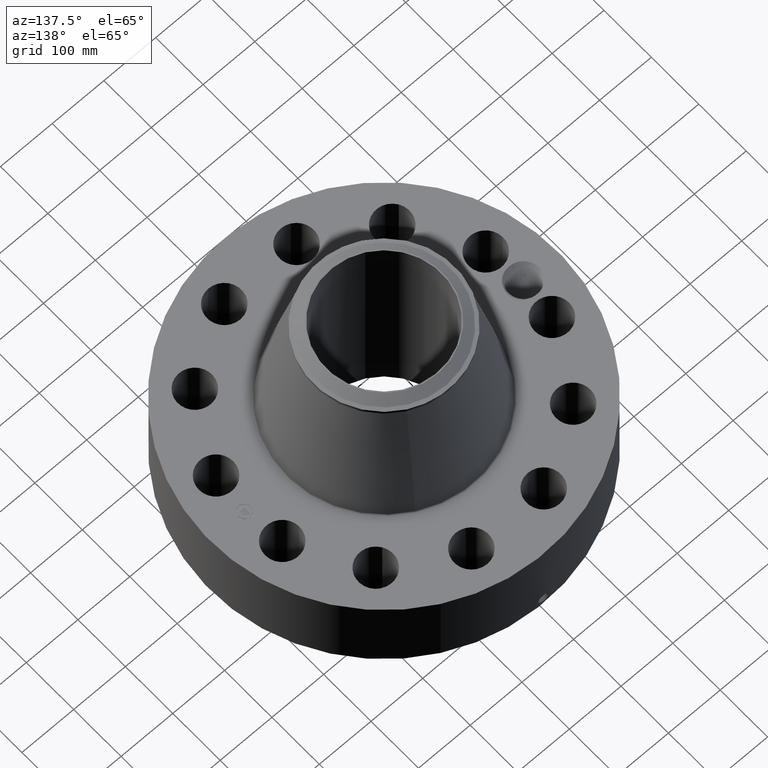
[diagram: clean part render]
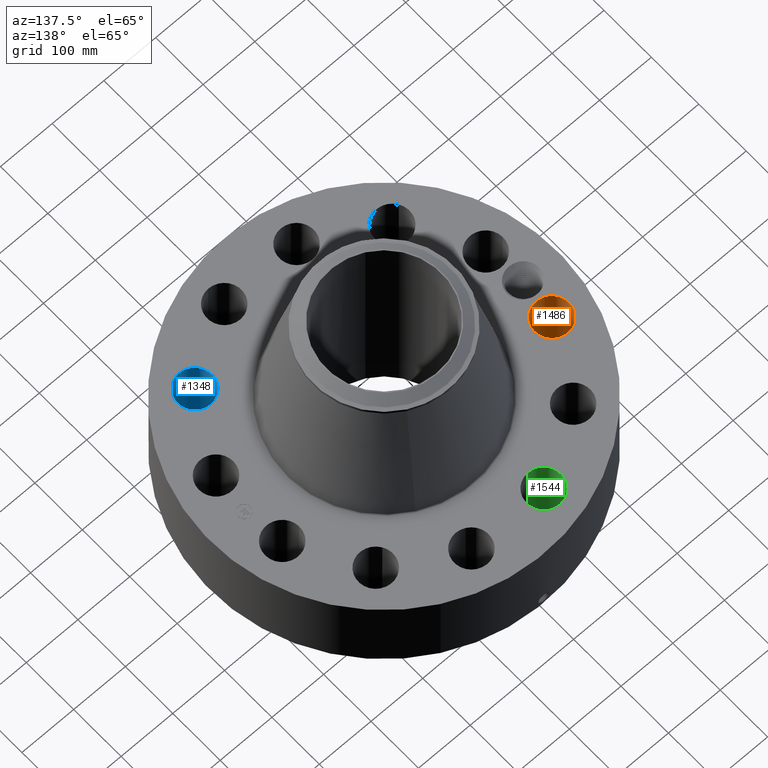
[diagram: same view with three faces highlighted in distinct colors, each labeled with its STEP entity id]
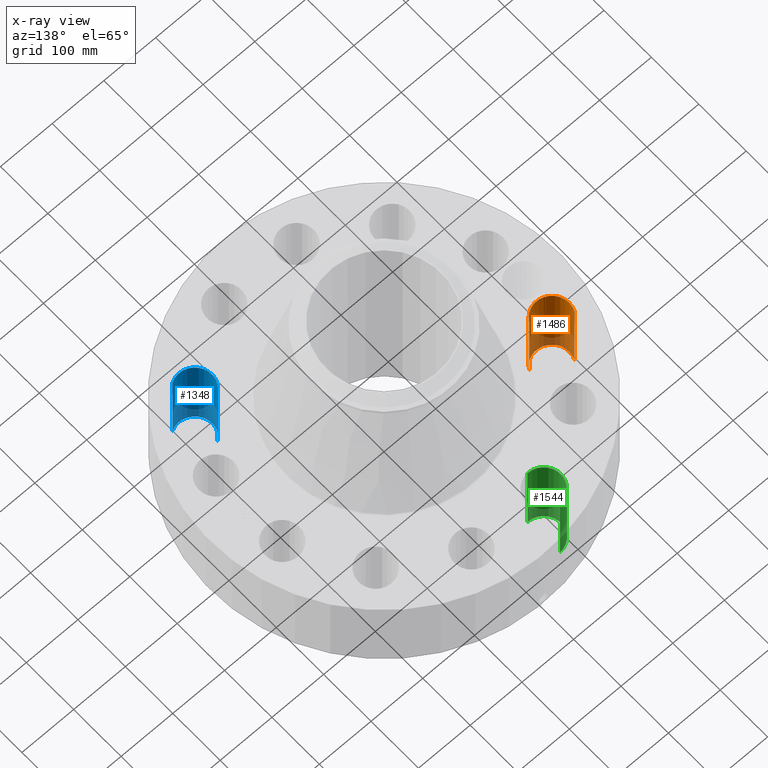
[diagram: x-ray of the same camera — body ghosted, the three highlighted faces saturated]
A machine part, auxiliary view with three faces highlighted in distinct colors.
The next image is the same camera in x-ray (body ghosted, the three faces saturated) — at least one of them is partly hidden behind the body in this view.
Their STEP definitions:

[orange] entity #1486 — the highlighted cylindrical surface (edge-blend (fillet) strip) has radius 33.274 mm, axis along (-0, 0, -1).
#365=AXIS2_PLACEMENT_3D('Circle Axis2P3D',#363,#364,$) ;
#778=AXIS2_PLACEMENT_3D('Circle Axis2P3D',#776,#777,$) ;
#1468=AXIS2_PLACEMENT_3D('Cylinder Axis2P3D',#1465,#1466,#1467) ;
#363=CARTESIAN_POINT('Axis2P3D Location',(-10.2629619044,2.74995235423,0.250000000001)) ;
#367=CARTESIAN_POINT('Vertex',(-9.11332874828,2.12190489865,0.250000000001)) ;
#369=CARTESIAN_POINT('Vertex',(-11.4125950604,3.3779998098,0.250000000001)) ;
#771=CARTESIAN_POINT('Vertex',(-11.4125950604,3.3779998098,6.75000000003)) ;
#773=CARTESIAN_POINT('Vertex',(-9.11332874828,2.12190489865,6.75000000003)) ;
#776=CARTESIAN_POINT('Axis2P3D Location',(-10.2629619044,2.74995235423,6.75000000003)) ;
#1465=CARTESIAN_POINT('Axis2P3D Location',(-10.2629619044,2.74995235423,6.74606299215)) ;
#1470=CARTESIAN_POINT('Line Origine',(-9.11332874828,2.12190489865,3.50000000001)) ;
#1475=CARTESIAN_POINT('Line Origine',(-11.4125950604,3.3779998098,3.50000000001)) ;
#364=DIRECTION('Axis2P3D Direction',(0.,0.,-0.0393700787402)) ;
#777=DIRECTION('Axis2P3D Direction',(0.,0.,-0.0393700787402)) ;
#1466=DIRECTION('Axis2P3D Direction',(-0.,0.,-0.0393700787402)) ;
#1467=DIRECTION('Axis2P3D XDirection',(-0.0345504945626,0.0188750212049,0.)) ;
#1471=DIRECTION('Vector Direction',(0.,0.,-0.0393700787402)) ;
#1476=DIRECTION('Vector Direction',(0.,0.,-0.0393700787402)) ;
#1472=VECTOR('Line Direction',#1471,0.0393700787402) ;
#1477=VECTOR('Line Direction',#1476,0.0393700787402) ;
#1481=ORIENTED_EDGE('',*,*,#1474,.F.) ;
#1482=ORIENTED_EDGE('',*,*,#371,.T.) ;
#1483=ORIENTED_EDGE('',*,*,#1479,.T.) ;
#1484=ORIENTED_EDGE('',*,*,#780,.F.) ;
#1486=ADVANCED_FACE('PartBody',(#1485),#1469,.F.) ;
#366=CIRCLE('generated circle',#365,1.31000000001) ;
#779=CIRCLE('generated circle',#778,1.31000000001) ;
#1469=CYLINDRICAL_SURFACE('generated cylinder',#1468,1.31000000001) ;
#371=EDGE_CURVE('',#368,#370,#366,.T.) ;
#780=EDGE_CURVE('',#774,#772,#779,.T.) ;
#1474=EDGE_CURVE('',#368,#774,#1473,.F.) ;
#1479=EDGE_CURVE('',#370,#772,#1478,.F.) ;
#1480=EDGE_LOOP('',(#1481,#1482,#1483,#1484)) ;
#1485=FACE_OUTER_BOUND('',#1480,.T.) ;
#1473=LINE('Line',#1470,#1472) ;
#1478=LINE('Line',#1475,#1477) ;
#368=VERTEX_POINT('',#367) ;
#370=VERTEX_POINT('',#369) ;
#772=VERTEX_POINT('',#771) ;
#774=VERTEX_POINT('',#773) ;

[blue] entity #1348 — the highlighted cylindrical surface (edge-blend (fillet) strip) has radius 33.274 mm, axis along (0, -0, -1).
#284=AXIS2_PLACEMENT_3D('Circle Axis2P3D',#282,#283,$) ;
#679=AXIS2_PLACEMENT_3D('Circle Axis2P3D',#677,#678,$) ;
#1323=AXIS2_PLACEMENT_3D('Cylinder Axis2P3D',#1320,#1321,#1322) ;
#277=CARTESIAN_POINT('Vertex',(6.83142175973,-6.39428792079,0.250000000001)) ;
#279=CARTESIAN_POINT('Vertex',(8.19459734055,-8.63173117949,0.250000000001)) ;
#282=CARTESIAN_POINT('Axis2P3D Location',(7.51300955014,-7.51300955014,0.250000000001)) ;
#677=CARTESIAN_POINT('Axis2P3D Location',(7.51300955014,-7.51300955014,6.75000000003)) ;
#681=CARTESIAN_POINT('Vertex',(8.19459734055,-8.63173117949,6.75000000003)) ;
#683=CARTESIAN_POINT('Vertex',(6.83142175973,-6.39428792079,6.75000000003)) ;
#1320=CARTESIAN_POINT('Axis2P3D Location',(7.51300955014,-7.51300955014,6.74606299215)) ;
#1325=CARTESIAN_POINT('Line Origine',(6.83142175973,-6.39428792079,3.50000000001)) ;
#1330=CARTESIAN_POINT('Line Origine',(8.19459734055,-8.63173117949,3.50000000001)) ;
#283=DIRECTION('Axis2P3D Direction',(0.,0.,-0.0393700787402)) ;
#678=DIRECTION('Axis2P3D Direction',(0.,0.,-0.0393700787402)) ;
#1321=DIRECTION('Axis2P3D Direction',(0.,-0.,-0.0393700787402)) ;
#1322=DIRECTION('Axis2P3D XDirection',(0.0204840954021,-0.0336214951417,0.)) ;
#1326=DIRECTION('Vector Direction',(0.,0.,-0.0393700787402)) ;
#1331=DIRECTION('Vector Direction',(0.,0.,-0.0393700787402)) ;
#1327=VECTOR('Line Direction',#1326,0.0393700787402) ;
#1332=VECTOR('Line Direction',#1331,0.0393700787402) ;
#1343=ORIENTED_EDGE('',*,*,#1334,.F.) ;
#1344=ORIENTED_EDGE('',*,*,#286,.T.) ;
#1345=ORIENTED_EDGE('',*,*,#1329,.T.) ;
#1346=ORIENTED_EDGE('',*,*,#685,.F.) ;
#1348=ADVANCED_FACE('PartBody',(#1347),#1324,.F.) ;
#285=CIRCLE('generated circle',#284,1.31000000001) ;
#680=CIRCLE('generated circle',#679,1.31000000001) ;
#1324=CYLINDRICAL_SURFACE('generated cylinder',#1323,1.31000000001) ;
#286=EDGE_CURVE('',#280,#278,#285,.T.) ;
#685=EDGE_CURVE('',#682,#684,#680,.T.) ;
#1329=EDGE_CURVE('',#278,#684,#1328,.F.) ;
#1334=EDGE_CURVE('',#280,#682,#1333,.F.) ;
#1342=EDGE_LOOP('',(#1343,#1344,#1345,#1346)) ;
#1347=FACE_OUTER_BOUND('',#1342,.T.) ;
#1328=LINE('Line',#1325,#1327) ;
#1333=LINE('Line',#1330,#1332) ;
#278=VERTEX_POINT('',#277) ;
#280=VERTEX_POINT('',#279) ;
#682=VERTEX_POINT('',#681) ;
#684=VERTEX_POINT('',#683) ;

[green] entity #1544 — the highlighted cylindrical surface (edge-blend (fillet) strip) has radius 33.274 mm, axis along (0, 0, -1).
#401=AXIS2_PLACEMENT_3D('Circle Axis2P3D',#399,#400,$) ;
#814=AXIS2_PLACEMENT_3D('Circle Axis2P3D',#812,#813,$) ;
#1526=AXIS2_PLACEMENT_3D('Cylinder Axis2P3D',#1523,#1524,#1525) ;
#399=CARTESIAN_POINT('Axis2P3D Location',(-2.74995235423,10.2629619044,0.250000000001)) ;
#403=CARTESIAN_POINT('Vertex',(-2.71904082749,8.95332665838,0.250000000001)) ;
#405=CARTESIAN_POINT('Vertex',(-2.78086388096,11.5725971503,0.250000000001)) ;
#807=CARTESIAN_POINT('Vertex',(-2.78086388096,11.5725971503,6.75000000003)) ;
#809=CARTESIAN_POINT('Vertex',(-2.71904082749,8.95332665838,6.75000000003)) ;
#812=CARTESIAN_POINT('Axis2P3D Location',(-2.74995235423,10.2629619044,6.75000000003)) ;
#1523=CARTESIAN_POINT('Axis2P3D Location',(-2.74995235423,10.2629619044,6.74606299215)) ;
#1528=CARTESIAN_POINT('Line Origine',(-2.71904082749,8.95332665838,3.50000000001)) ;
#1533=CARTESIAN_POINT('Line Origine',(-2.78086388096,11.5725971503,3.50000000001)) ;
#400=DIRECTION('Axis2P3D Direction',(0.,0.,-0.0393700787402)) ;
#813=DIRECTION('Axis2P3D Direction',(0.,0.,-0.0393700787402)) ;
#1524=DIRECTION('Axis2P3D Direction',(0.,0.,-0.0393700787402)) ;
#1525=DIRECTION('Axis2P3D XDirection',(-0.000928999420902,0.039359116607,0.)) ;
#1529=DIRECTION('Vector Direction',(0.,0.,-0.0393700787402)) ;
#1534=DIRECTION('Vector Direction',(0.,0.,-0.0393700787402)) ;
#1530=VECTOR('Line Direction',#1529,0.0393700787402) ;
#1535=VECTOR('Line Direction',#1534,0.0393700787402) ;
#1539=ORIENTED_EDGE('',*,*,#1532,.F.) ;
#1540=ORIENTED_EDGE('',*,*,#407,.T.) ;
#1541=ORIENTED_EDGE('',*,*,#1537,.T.) ;
#1542=ORIENTED_EDGE('',*,*,#816,.F.) ;
#1544=ADVANCED_FACE('PartBody',(#1543),#1527,.F.) ;
#402=CIRCLE('generated circle',#401,1.31000000001) ;
#815=CIRCLE('generated circle',#814,1.31000000001) ;
#1527=CYLINDRICAL_SURFACE('generated cylinder',#1526,1.31000000001) ;
#407=EDGE_CURVE('',#404,#406,#402,.T.) ;
#816=EDGE_CURVE('',#810,#808,#815,.T.) ;
#1532=EDGE_CURVE('',#404,#810,#1531,.F.) ;
#1537=EDGE_CURVE('',#406,#808,#1536,.F.) ;
#1538=EDGE_LOOP('',(#1539,#1540,#1541,#1542)) ;
#1543=FACE_OUTER_BOUND('',#1538,.T.) ;
#1531=LINE('Line',#1528,#1530) ;
#1536=LINE('Line',#1533,#1535) ;
#404=VERTEX_POINT('',#403) ;
#406=VERTEX_POINT('',#405) ;
#808=VERTEX_POINT('',#807) ;
#810=VERTEX_POINT('',#809) ;